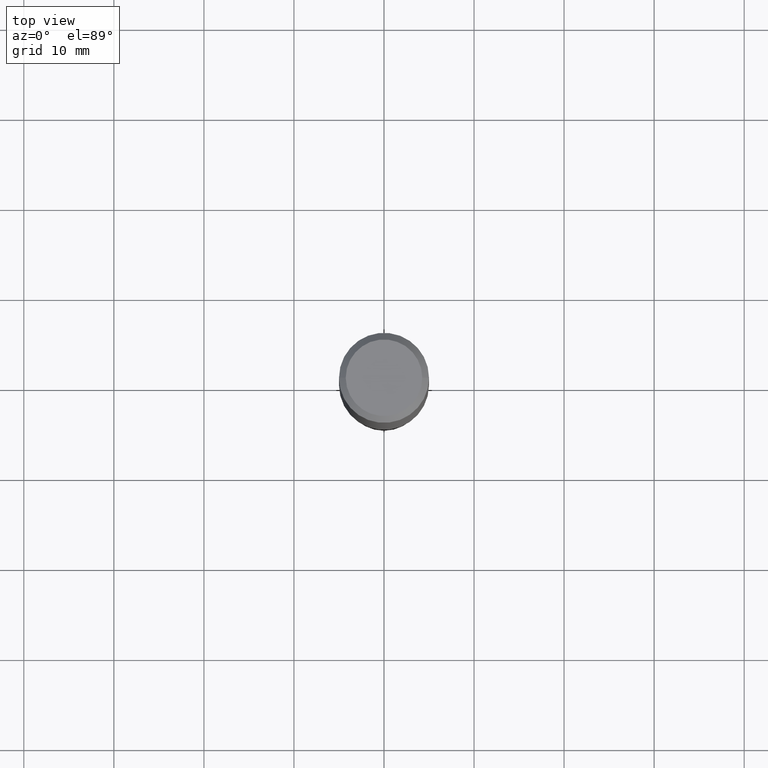
[diagram: clean part render]
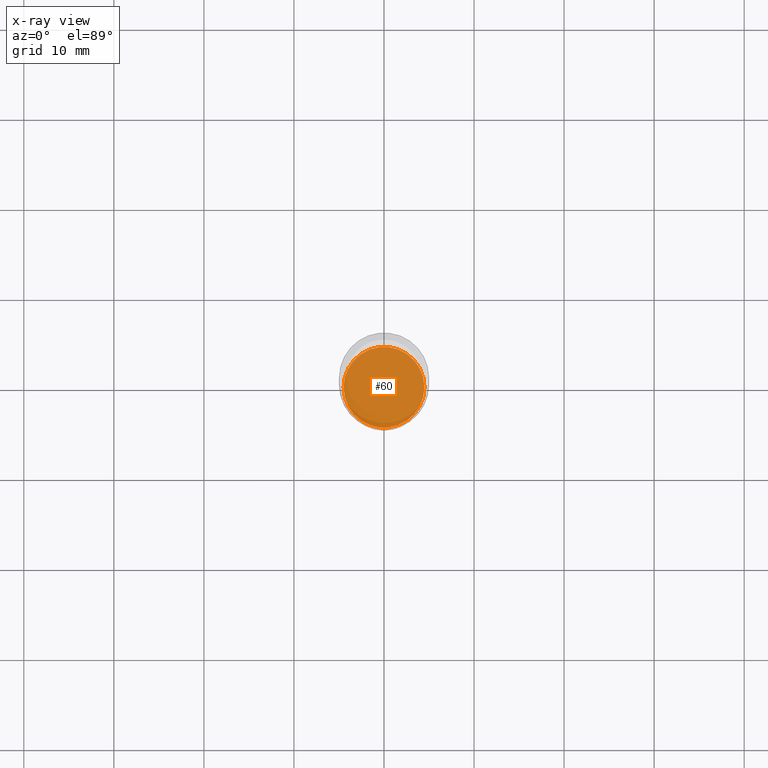
[diagram: x-ray — body ghosted, one internal face saturated and labeled with its STEP entity id]
A machine part, top view, then the same camera in x-ray: the body is ghosted and one INTERNAL B-rep face — a face not visible from any outside direction — is saturated and labeled: STEP entity #60.
In plain terms, the highlighted planar face has unit normal (-0, 0, 1).
Its self-contained STEP definition (entity closure, byte-faithful):
#5 = AXIS2_PLACEMENT_3D ( 'NONE', #73, #464, #401 ) ;
#7 = DIRECTION ( 'NONE',  ( -2.445468806185136597E-29, 3.491481338843145583E-15, 1.000000000000000000 ) ) ;
#13 = AXIS2_PLACEMENT_3D ( 'NONE', #114, #7, #41 ) ;
#14 = CIRCLE ( 'NONE', #5, 0.1766500000000000015 ) ;
#41 = DIRECTION ( 'NONE',  ( 1.000000000000000000, -6.982962677686269866E-15, 0.000000000000000000 ) ) ;
#42 = ORIENTED_EDGE ( 'NONE', *, *, #446, .F. ) ;
#54 = CARTESIAN_POINT ( 'NONE',  ( 5.912165385833187270E-29, -8.441005284787188533E-15, -2.417600000000000193 ) ) ;
#60 = ADVANCED_FACE ( 'NONE', ( #226 ), #380, .F. ) ;
#73 = CARTESIAN_POINT ( 'NONE',  ( 5.912165385833187270E-29, -8.441005284787188533E-15, -2.417600000000000193 ) ) ;
#76 = VERTEX_POINT ( 'NONE', #158 ) ;
#114 = CARTESIAN_POINT ( 'NONE',  ( 5.912165385833187270E-29, -8.441005284787188533E-15, -2.417600000000000193 ) ) ;
#127 = DIRECTION ( 'NONE',  ( -2.438088387897960049E-29, 3.491481338843145188E-15, 1.000000000000000000 ) ) ;
#158 = CARTESIAN_POINT ( 'NONE',  ( 0.1766500000000000015, -9.674545641800469497E-15, -2.417600000000000193 ) ) ;
#159 = EDGE_CURVE ( 'NONE', #458, #76, #405, .T. ) ;
#192 = AXIS2_PLACEMENT_3D ( 'NONE', #54, #127, #199 ) ;
#199 = DIRECTION ( 'NONE',  ( 1.000000000000000000, -6.982962677686265922E-15, 4.876176775795935793E-29 ) ) ;
#226 = FACE_OUTER_BOUND ( 'NONE', #425, .T. ) ;
#325 = CARTESIAN_POINT ( 'NONE',  ( -0.1766500000000000015, -7.183182314892861329E-15, -2.417600000000000193 ) ) ;
#365 = ORIENTED_EDGE ( 'NONE', *, *, #159, .F. ) ;
#380 = PLANE ( 'NONE',  #192 ) ;
#401 = DIRECTION ( 'NONE',  ( 1.000000000000000000, -6.982962677686269866E-15, 0.000000000000000000 ) ) ;
#405 = CIRCLE ( 'NONE', #13, 0.1766500000000000015 ) ;
#425 = EDGE_LOOP ( 'NONE', ( #42, #365 ) ) ;
#446 = EDGE_CURVE ( 'NONE', #76, #458, #14, .T. ) ;
#458 = VERTEX_POINT ( 'NONE', #325 ) ;
#464 = DIRECTION ( 'NONE',  ( -2.445468806185136597E-29, 3.491481338843145583E-15, 1.000000000000000000 ) ) ;